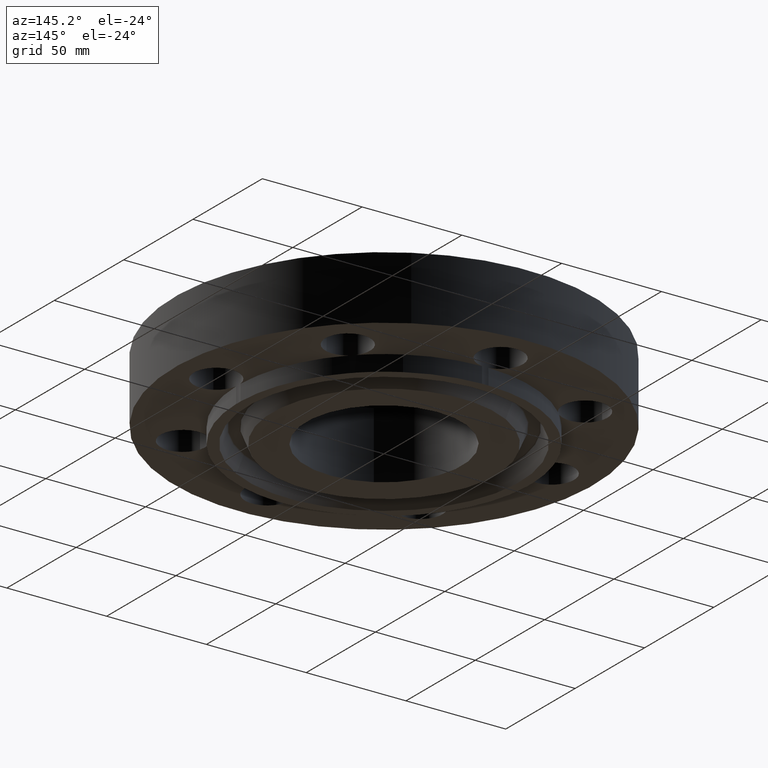
[diagram: clean part render]
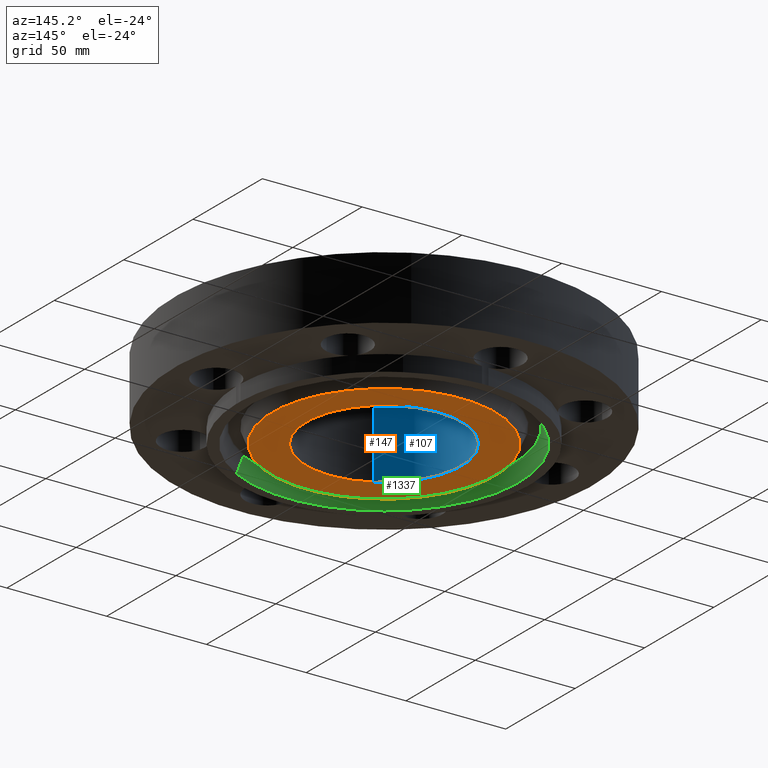
[diagram: same view with three faces highlighted in distinct colors, each labeled with its STEP entity id]
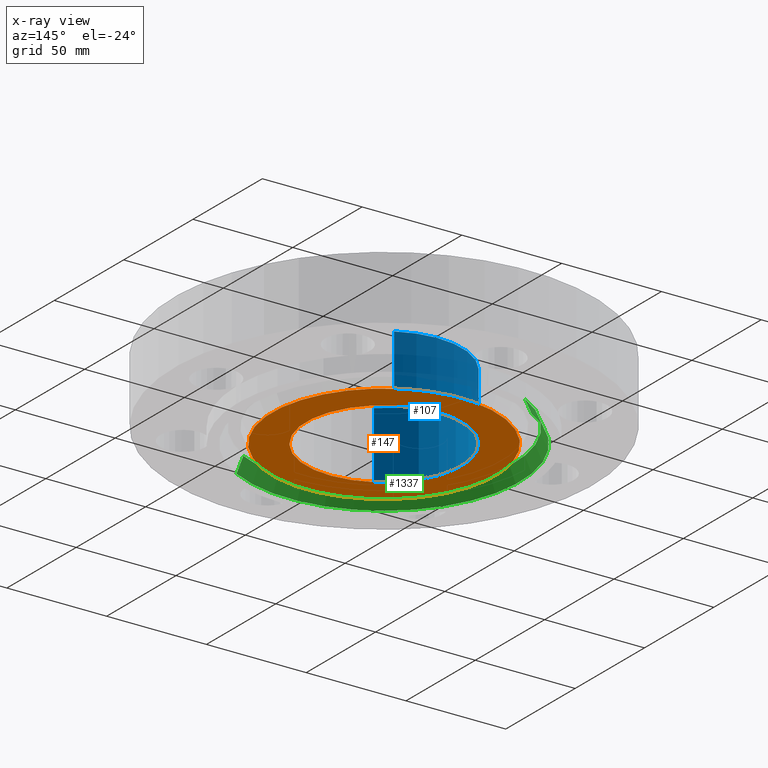
[diagram: x-ray of the same camera — body ghosted, the three highlighted faces saturated]
A machine part, auxiliary view with three faces highlighted in distinct colors.
The next image is the same camera in x-ray (body ghosted, the three faces saturated) — at least one of them is partly hidden behind the body in this view.
Their STEP definitions:

[orange] entity #147 — the highlighted planar face has unit normal (0, 0, -1).
#91=AXIS2_PLACEMENT_3D('Circle Axis2P3D',#89,#90,$) ;
#110=AXIS2_PLACEMENT_3D('Circle Axis2P3D',#108,#109,$) ;
#123=AXIS2_PLACEMENT_3D('Plane Axis2P3D',#120,#121,#122) ;
#127=AXIS2_PLACEMENT_3D('Circle Axis2P3D',#125,#126,$) ;
#136=AXIS2_PLACEMENT_3D('Circle Axis2P3D',#134,#135,$) ;
#86=CARTESIAN_POINT('Vertex',(-0.735438776222,-1.34621164995,-0.313000000001)) ;
#89=CARTESIAN_POINT('Axis2P3D Location',(0.,0.,-0.313000000001)) ;
#93=CARTESIAN_POINT('Vertex',(0.735438776222,1.34621164995,-0.313000000001)) ;
#108=CARTESIAN_POINT('Axis2P3D Location',(0.,0.,-0.313000000001)) ;
#120=CARTESIAN_POINT('Axis2P3D Location',(0.,1.53400000001,-0.313000000001)) ;
#125=CARTESIAN_POINT('Axis2P3D Location',(-2.79741234551E-016,2.79741234551E-016,-0.313000000001)) ;
#129=CARTESIAN_POINT('Vertex',(-1.05617446155,1.93331438385,-0.313000000001)) ;
#131=CARTESIAN_POINT('Vertex',(1.05617446155,-1.93331438385,-0.313000000001)) ;
#134=CARTESIAN_POINT('Axis2P3D Location',(-1.39870617276E-015,5.59482469102E-016,-0.313000000001)) ;
#90=DIRECTION('Axis2P3D Direction',(0.,0.,-0.0393700787402)) ;
#109=DIRECTION('Axis2P3D Direction',(0.,0.,-0.0393700787402)) ;
#121=DIRECTION('Axis2P3D Direction',(0.,0.,-0.0393700787402)) ;
#122=DIRECTION('Axis2P3D XDirection',(0.0393700787402,0.,0.)) ;
#126=DIRECTION('Axis2P3D Direction',(0.,0.,-0.0393700787402)) ;
#135=DIRECTION('Axis2P3D Direction',(0.,0.,-0.0393700787402)) ;
#140=ORIENTED_EDGE('',*,*,#133,.T.) ;
#141=ORIENTED_EDGE('',*,*,#138,.T.) ;
#144=ORIENTED_EDGE('',*,*,#112,.F.) ;
#145=ORIENTED_EDGE('',*,*,#95,.F.) ;
#146=FACE_BOUND('',#143,.T.) ;
#147=ADVANCED_FACE('PartBody',(#142,#146),#124,.T.) ;
#92=CIRCLE('generated circle',#91,1.53400000001) ;
#111=CIRCLE('generated circle',#110,1.53400000001) ;
#128=CIRCLE('generated circle',#127,2.20300000001) ;
#137=CIRCLE('generated circle',#136,2.20300000001) ;
#95=EDGE_CURVE('',#87,#94,#92,.T.) ;
#112=EDGE_CURVE('',#94,#87,#111,.T.) ;
#133=EDGE_CURVE('',#130,#132,#128,.T.) ;
#138=EDGE_CURVE('',#132,#130,#137,.T.) ;
#139=EDGE_LOOP('',(#140,#141)) ;
#143=EDGE_LOOP('',(#144,#145)) ;
#142=FACE_OUTER_BOUND('',#139,.T.) ;
#124=PLANE('',#123) ;
#87=VERTEX_POINT('',#86) ;
#94=VERTEX_POINT('',#93) ;
#130=VERTEX_POINT('',#129) ;
#132=VERTEX_POINT('',#131) ;

[blue] entity #107 — the highlighted cylindrical surface (partial cylindrical patch) has radius 38.9636 mm, axis along (0, 0, -1).
#69=AXIS2_PLACEMENT_3D('Circle Axis2P3D',#67,#68,$) ;
#80=AXIS2_PLACEMENT_3D('Cylinder Axis2P3D',#77,#78,#79) ;
#91=AXIS2_PLACEMENT_3D('Circle Axis2P3D',#89,#90,$) ;
#62=CARTESIAN_POINT('Vertex',(0.735438776222,1.34621164995,1.)) ;
#64=CARTESIAN_POINT('Vertex',(-0.735438776222,-1.34621164995,1.)) ;
#67=CARTESIAN_POINT('Axis2P3D Location',(-3.49676543189E-017,-2.09805925913E-016,1.)) ;
#77=CARTESIAN_POINT('Axis2P3D Location',(0.,0.,0.748500000003)) ;
#82=CARTESIAN_POINT('Line Origine',(-0.735438776222,-1.34621164995,0.343500000001)) ;
#86=CARTESIAN_POINT('Vertex',(-0.735438776222,-1.34621164995,-0.313000000001)) ;
#89=CARTESIAN_POINT('Axis2P3D Location',(0.,0.,-0.313000000001)) ;
#93=CARTESIAN_POINT('Vertex',(0.735438776222,1.34621164995,-0.313000000001)) ;
#96=CARTESIAN_POINT('Line Origine',(0.735438776222,1.34621164995,0.343500000001)) ;
#68=DIRECTION('Axis2P3D Direction',(0.,0.,-0.0393700787402)) ;
#78=DIRECTION('Axis2P3D Direction',(0.,0.,-0.0393700787402)) ;
#79=DIRECTION('Axis2P3D XDirection',(0.0188750212049,0.0345504945626,0.)) ;
#83=DIRECTION('Vector Direction',(0.,0.,-0.0393700787402)) ;
#90=DIRECTION('Axis2P3D Direction',(0.,0.,-0.0393700787402)) ;
#97=DIRECTION('Vector Direction',(0.,0.,-0.0393700787402)) ;
#84=VECTOR('Line Direction',#83,0.0393700787402) ;
#98=VECTOR('Line Direction',#97,0.0393700787402) ;
#102=ORIENTED_EDGE('',*,*,#88,.T.) ;
#103=ORIENTED_EDGE('',*,*,#95,.T.) ;
#104=ORIENTED_EDGE('',*,*,#100,.F.) ;
#105=ORIENTED_EDGE('',*,*,#71,.F.) ;
#107=ADVANCED_FACE('PartBody',(#106),#81,.F.) ;
#70=CIRCLE('generated circle',#69,1.53400000001) ;
#92=CIRCLE('generated circle',#91,1.53400000001) ;
#81=CYLINDRICAL_SURFACE('generated cylinder',#80,1.53400000001) ;
#71=EDGE_CURVE('',#65,#63,#70,.T.) ;
#88=EDGE_CURVE('',#65,#87,#85,.T.) ;
#95=EDGE_CURVE('',#87,#94,#92,.T.) ;
#100=EDGE_CURVE('',#63,#94,#99,.T.) ;
#101=EDGE_LOOP('',(#102,#103,#104,#105)) ;
#106=FACE_OUTER_BOUND('',#101,.T.) ;
#85=LINE('Line',#82,#84) ;
#99=LINE('Line',#96,#98) ;
#63=VERTEX_POINT('',#62) ;
#65=VERTEX_POINT('',#64) ;
#87=VERTEX_POINT('',#86) ;
#94=VERTEX_POINT('',#93) ;

[green] entity #1337 — the highlighted conical surface has half-angle 23 deg.
#339=AXIS2_PLACEMENT_3D('Circle Axis2P3D',#337,#338,$) ;
#1298=AXIS2_PLACEMENT_3D('Cone Axis2P3D',#1295,#1296,#1297) ;
#1328=AXIS2_PLACEMENT_3D('Circle Axis2P3D',#1326,#1327,$) ;
#337=CARTESIAN_POINT('Axis2P3D Location',(-2.79741234551E-016,2.79741234551E-016,-0.313000000001)) ;
#341=CARTESIAN_POINT('Vertex',(1.28102503916,-2.34490060538,-0.313000000001)) ;
#343=CARTESIAN_POINT('Vertex',(-1.28102503916,2.34490060538,-0.313000000001)) ;
#1295=CARTESIAN_POINT('Axis2P3D Location',(0.,0.,-0.0188873350169)) ;
#1300=CARTESIAN_POINT('Line Origine',(1.25109847736,-2.29012040146,-0.165943667509)) ;
#1304=CARTESIAN_POINT('Vertex',(1.22117191556,-2.23534019754,-0.0188873350169)) ;
#1311=CARTESIAN_POINT('Vertex',(-1.22117191556,2.23534019754,-0.0188873350169)) ;
#1314=CARTESIAN_POINT('Line Origine',(-1.25109847736,2.29012040146,-0.165943667509)) ;
#1326=CARTESIAN_POINT('Axis2P3D Location',(0.,0.,-0.0188873350169)) ;
#338=DIRECTION('Axis2P3D Direction',(0.,0.,-0.0393700787402)) ;
#1296=DIRECTION('Axis2P3D Direction',(-0.,-0.,-0.0393700787402)) ;
#1297=DIRECTION('Axis2P3D XDirection',(0.0188750212049,-0.0345504945626,0.)) ;
#1301=DIRECTION('Vector Direction',(0.00737505833565,-0.0134999537303,-0.0362403485611)) ;
#1315=DIRECTION('Vector Direction',(-0.00737505833565,0.0134999537303,-0.0362403485611)) ;
#1327=DIRECTION('Axis2P3D Direction',(0.,0.,-0.0393700787402)) ;
#1302=VECTOR('Line Direction',#1301,0.0393700787402) ;
#1316=VECTOR('Line Direction',#1315,0.0393700787402) ;
#1332=ORIENTED_EDGE('',*,*,#345,.T.) ;
#1333=ORIENTED_EDGE('',*,*,#1318,.T.) ;
#1334=ORIENTED_EDGE('',*,*,#1330,.T.) ;
#1335=ORIENTED_EDGE('',*,*,#1306,.F.) ;
#1337=ADVANCED_FACE('PartBody',(#1336),#1299,.F.) ;
#340=CIRCLE('generated circle',#339,2.67200000001) ;
#1329=CIRCLE('generated circle',#1328,2.5471565806) ;
#1299=CONICAL_SURFACE('Cone',#1298,2.5471565806,0.401425727959) ;
#345=EDGE_CURVE('',#342,#344,#340,.T.) ;
#1306=EDGE_CURVE('',#342,#1305,#1303,.F.) ;
#1318=EDGE_CURVE('',#344,#1312,#1317,.F.) ;
#1330=EDGE_CURVE('',#1312,#1305,#1329,.F.) ;
#1331=EDGE_LOOP('',(#1332,#1333,#1334,#1335)) ;
#1336=FACE_OUTER_BOUND('',#1331,.T.) ;
#1303=LINE('Line',#1300,#1302) ;
#1317=LINE('Line',#1314,#1316) ;
#342=VERTEX_POINT('',#341) ;
#344=VERTEX_POINT('',#343) ;
#1305=VERTEX_POINT('',#1304) ;
#1312=VERTEX_POINT('',#1311) ;